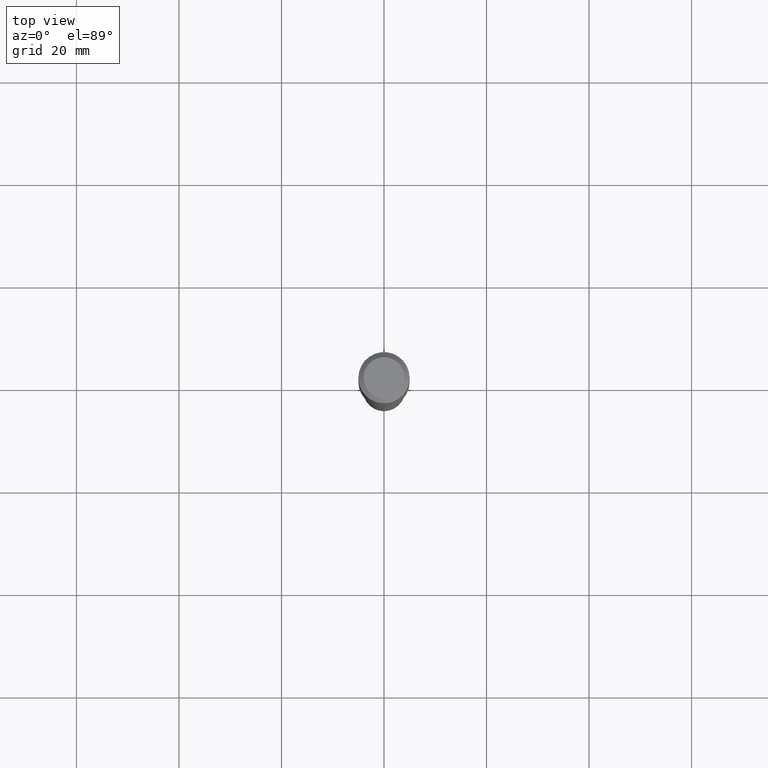
[diagram: clean part render]
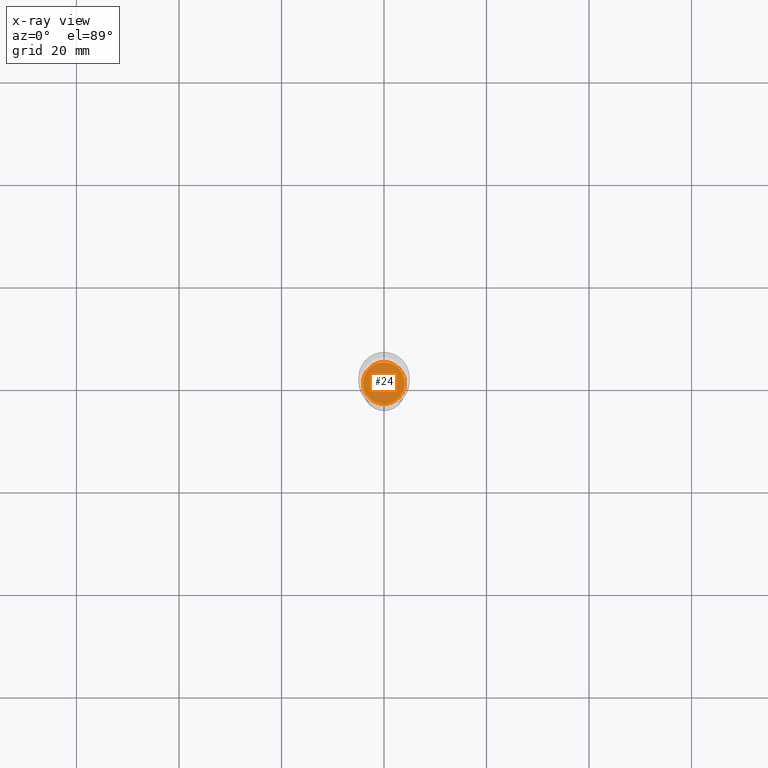
[diagram: x-ray — body ghosted, one internal face saturated and labeled with its STEP entity id]
A machine part, top view, then the same camera in x-ray: the body is ghosted and one INTERNAL B-rep face — a face not visible from any outside direction — is saturated and labeled: STEP entity #24.
In plain terms, the highlighted planar face has unit normal (-0, 0, 1).
Its self-contained STEP definition (entity closure, byte-faithful):
#21 = FACE_OUTER_BOUND ( 'NONE', #29, .T. ) ;
#24 = ADVANCED_FACE ( 'NONE', ( #21 ), #99, .F. ) ;
#29 = EDGE_LOOP ( 'NONE', ( #448, #53 ) ) ;
#53 = ORIENTED_EDGE ( 'NONE', *, *, #238, .F. ) ;
#99 = PLANE ( 'NONE',  #181 ) ;
#102 = CIRCLE ( 'NONE', #372, 0.1608999999999999875 ) ;
#138 = DIRECTION ( 'NONE',  ( -2.445468806185136597E-29, 3.491481338843145583E-15, 1.000000000000000000 ) ) ;
#140 = DIRECTION ( 'NONE',  ( 1.000000000000000000, -6.982962677686268288E-15, 0.000000000000000000 ) ) ;
#148 = DIRECTION ( 'NONE',  ( 1.000000000000000000, -6.982962677686268288E-15, 0.000000000000000000 ) ) ;
#181 = AXIS2_PLACEMENT_3D ( 'NONE', #352, #242, #471 ) ;
#238 = EDGE_CURVE ( 'NONE', #483, #313, #253, .T. ) ;
#242 = DIRECTION ( 'NONE',  ( -2.438088387897960049E-29, 3.491481338843145188E-15, 1.000000000000000000 ) ) ;
#250 = CARTESIAN_POINT ( 'NONE',  ( 5.969144809017299038E-29, -8.522356799982231388E-15, -2.440899999999999181 ) ) ;
#253 = CIRCLE ( 'NONE', #267, 0.1608999999999999875 ) ;
#267 = AXIS2_PLACEMENT_3D ( 'NONE', #329, #446, #148 ) ;
#286 = CARTESIAN_POINT ( 'NONE',  ( -0.1608999999999999875, -7.376444310970119471E-15, -2.440899999999999181 ) ) ;
#313 = VERTEX_POINT ( 'NONE', #338 ) ;
#329 = CARTESIAN_POINT ( 'NONE',  ( 5.969144809017299038E-29, -8.522356799982231388E-15, -2.440899999999999181 ) ) ;
#338 = CARTESIAN_POINT ( 'NONE',  ( 0.1608999999999999875, -9.645915494821952106E-15, -2.440899999999999181 ) ) ;
#352 = CARTESIAN_POINT ( 'NONE',  ( 3.075200331040620481E-29, -1.266665000553543070E-14, -2.440899999999999181 ) ) ;
#372 = AXIS2_PLACEMENT_3D ( 'NONE', #250, #138, #140 ) ;
#437 = EDGE_CURVE ( 'NONE', #313, #483, #102, .T. ) ;
#446 = DIRECTION ( 'NONE',  ( -2.445468806185136597E-29, 3.491481338843145583E-15, 1.000000000000000000 ) ) ;
#448 = ORIENTED_EDGE ( 'NONE', *, *, #437, .F. ) ;
#471 = DIRECTION ( 'NONE',  ( 1.000000000000000000, -6.982962677686265922E-15, 4.876176775795935793E-29 ) ) ;
#483 = VERTEX_POINT ( 'NONE', #286 ) ;